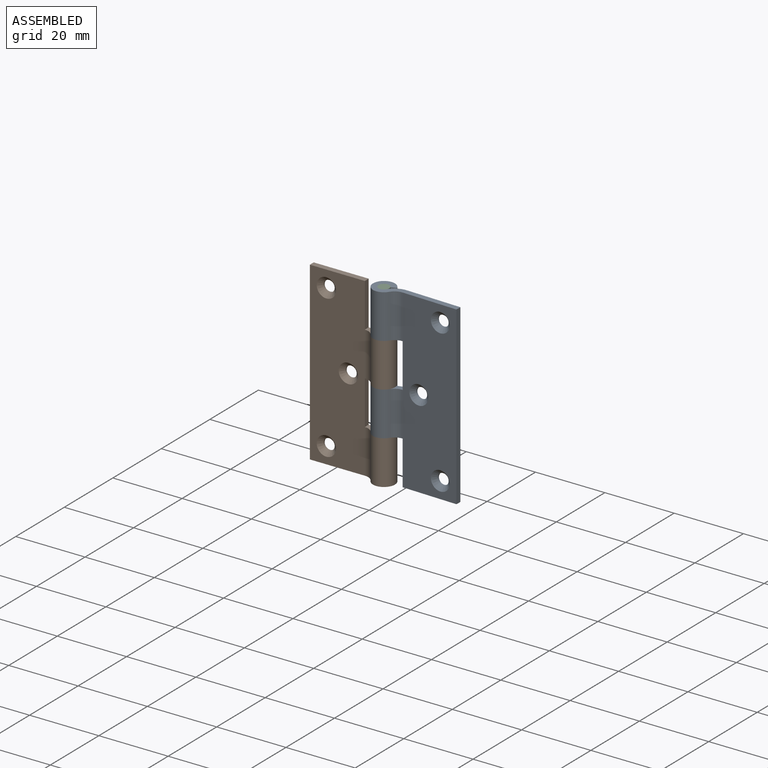
[diagram: assembled view]
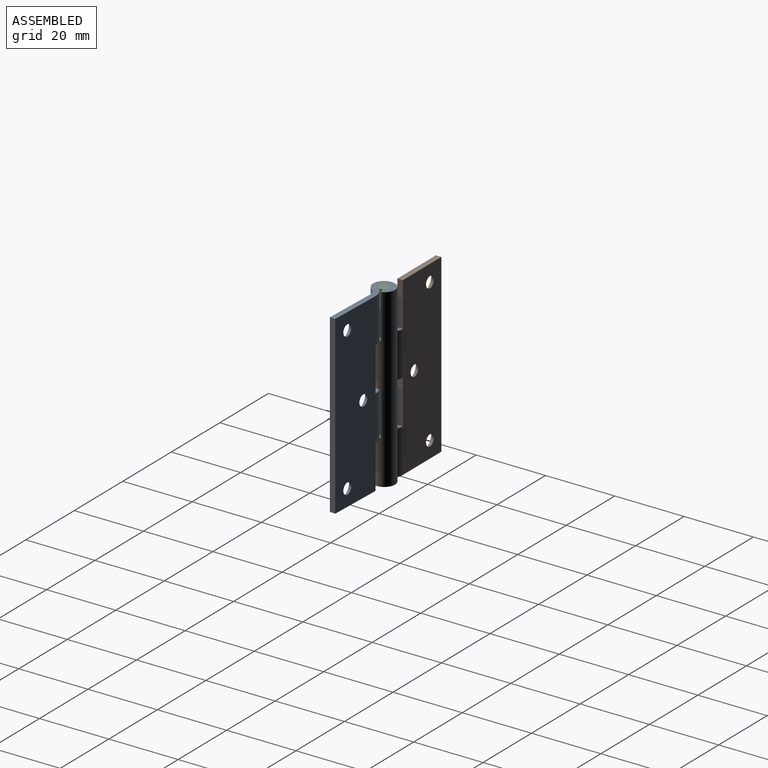
[diagram: assembled view, second angle]
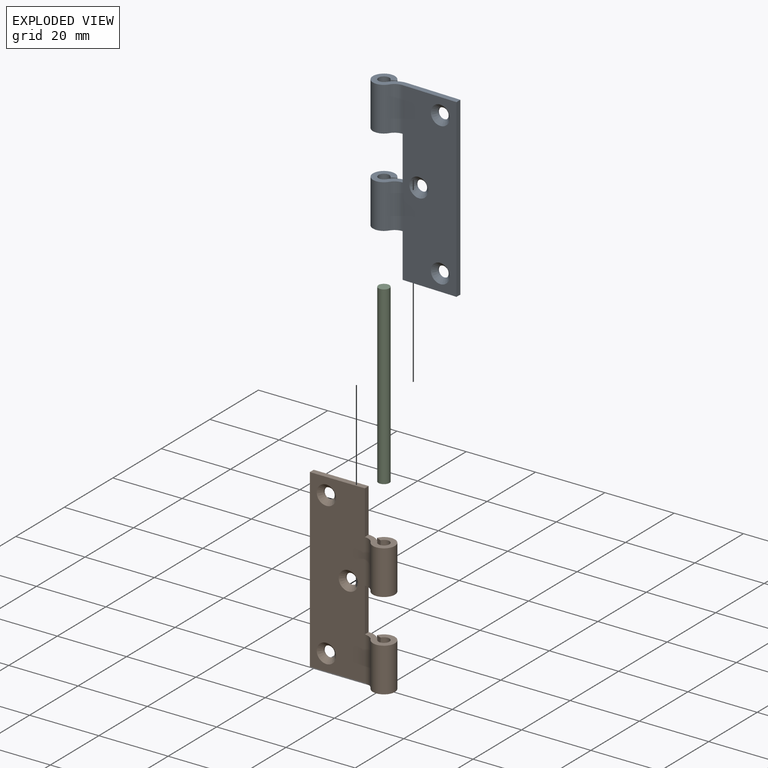
[diagram: exploded view]
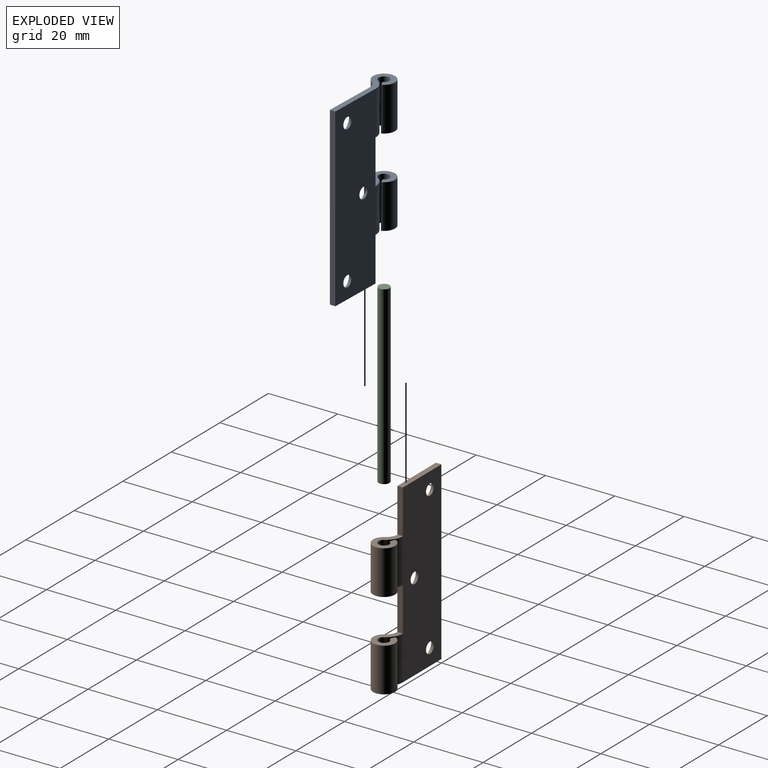
[diagram: exploded view, second angle]
ASSEMBLY  parts=3 mates=2
PART A: 26 faces, bbox 24.6x6.4x50.8 mm
  f0: plane 50.8x15.88mm, normal (0,-1,0), area 782.7mm2, adj f1,f7,f8,f13,f14,f17,f18,f19
  f1: cylinder r=4.79mm len=12.7mm, axis (0,0,-1), area 63.5mm2, adj f0,f2,f16,f21
  f2: cylinder r=1.59mm len=12.7mm, axis (0,0,-1), area 107.7mm2, adj f1,f3,f16,f21
  f3: plane 12.7x1.45mm, normal (-0.4,0.92,0), area 20.2mm2, adj f2,f4,f16,f21
  f4: cylinder r=3.17mm len=12.7mm, axis (0,0,-1), area 215.4mm2, adj f3,f5,f16,f21
  f5: cylinder r=3.2mm len=12.7mm, axis (0,0,-1), area 42.5mm2, adj f4,f6,f16,f21
  f6: plane 50.8x15.88mm, normal (0,1,0), area 733.7mm2, adj f5,f7,f12,f13,f14,f17,f22,f23
  f7: plane 15.88x1.59mm, normal (0,0,-1), area 25.2mm2, adj f0,f6,f13,f22
  f8: cylinder r=4.79mm len=12.7mm, axis (0,0,-1), area 63.5mm2, adj f0,f9,f14,f15
  f9: cylinder r=1.59mm len=12.7mm, axis (0,0,-1), area 107.7mm2, adj f8,f10,f14,f15
  f10: plane 12.7x1.45mm, normal (-0.4,0.92,0), area 20.2mm2, adj f9,f11,f14,f15
  f11: cylinder r=3.17mm len=12.7mm, axis (0,0,-1), area 215.4mm2, adj f10,f12,f14,f15
  f12: cylinder r=3.2mm len=12.7mm, axis (0,0,-1), area 42.5mm2, adj f6,f11,f14,f15
  f13: plane 50.8x1.59mm, normal (-1,0,0), area 80.6mm2, adj f0,f6,f7,f14
  f14: plane 24.56x6.35mm, normal (0,0,1), area 52mm2, adj f0,f6,f8,f9,f10,f11,f12,f13
  f15: plane 8.69x6.35mm, normal (0,0,-1), area 26.8mm2, adj f8,f9,f10,f11,f12,f17
  f16: plane 8.69x6.35mm, normal (0,0,1), area 26.8mm2, adj f1,f2,f3,f4,f5,f17
  f17: plane 12.7x1.59mm, normal (1,0,0), area 20.2mm2, adj f0,f6,f15,f16
  f18: cylinder r=1.59mm len=3.18mm, axis (0,1,0), area 4mm2, adj f0,f23
  f19: cylinder r=1.59mm len=3.18mm, axis (0,1,0), area 4mm2, adj f0,f24
  f20: cylinder r=1.59mm len=3.18mm, axis (0,1,0), area 4mm2, adj f0,f25
  f21: plane 8.69x6.35mm, normal (0,0,-1), area 26.8mm2, adj f1,f2,f3,f4,f5,f22
  f22: plane 12.7x1.59mm, normal (1,0,0), area 20.2mm2, adj f0,f6,f7,f21
  f23: cone r=2.78mm half-angle=45deg, axis (0,1,0), area 23.1mm2, adj f6,f18
  f24: cone r=2.78mm half-angle=45deg, axis (0,1,0), area 23.1mm2, adj f6,f19
  f25: cone r=2.78mm half-angle=45deg, axis (0,1,0), area 23.1mm2, adj f6,f20
PART B: same geometry as A
PART C: 3 faces, bbox 3.2x3.2x50.8 mm
  f0: cylinder r=1.59mm len=50.8mm, axis (0,0,-1), area 506.7mm2, adj f1,f2
  f1: plane 3.18x3.18mm, normal (0,0,1), area 7.9mm2, adj f0
  f2: plane 3.18x3.18mm, normal (0,0,-1), area 7.9mm2, adj f0
PLACE A rot(axis=(0,0,1),178.2deg) t=(42.72,-3.83,-50.8)mm
PLACE B rot(axis=(1,0,0),180deg) t=(0,-3.17,0)mm
PLACE C rot(axis=(0,0,1),178.2deg) t=(42.72,-3.83,-50.8)mm
MATE revolute B.f2 <-> C.f0  axis (0,0,-1) through (21.39,-1.59,-50.8)mm
MATE fastened A.f2 <-> C.f0  axis (0,0,1) through (21.39,-1.59,0)mm
